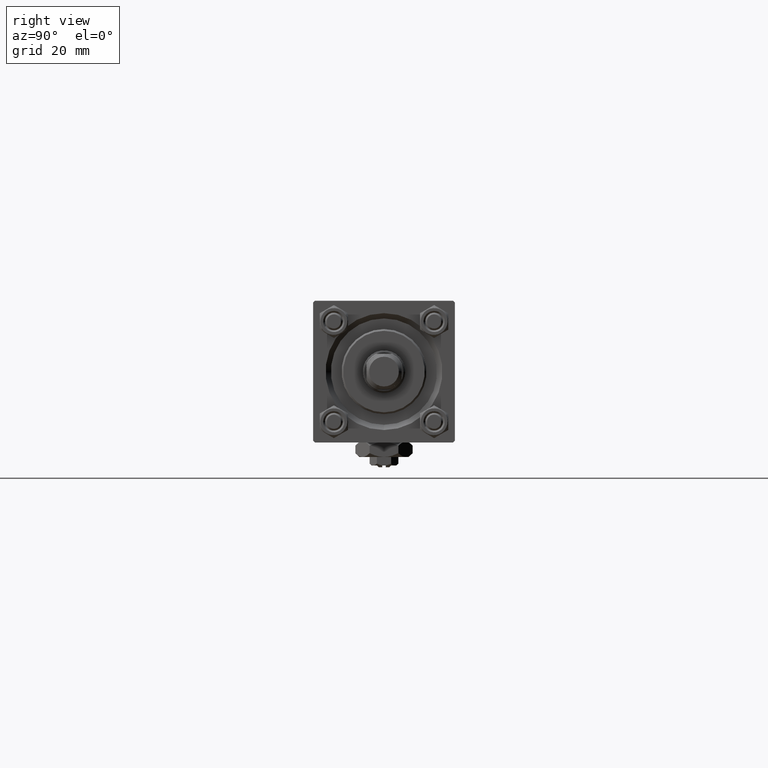
[diagram: clean part render]
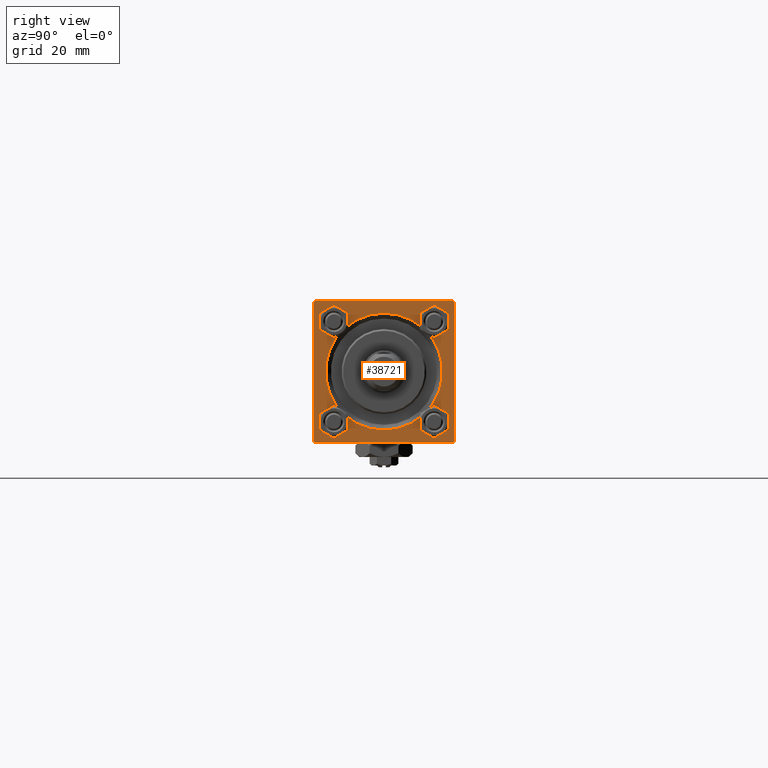
[diagram: same view with one face highlighted and labeled with its STEP entity id]
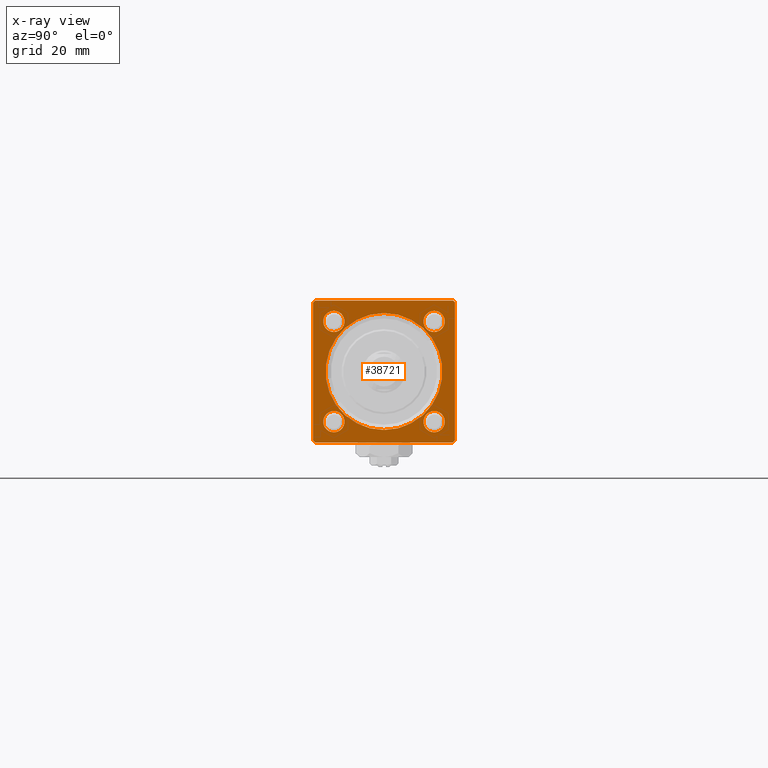
[diagram: x-ray of the same camera — body ghosted, the highlighted face saturated]
A machine part, right view. The second image highlights one B-rep face of the part: STEP entity #38721.
The next image is the same camera in x-ray: the body ghosted, the highlighted face saturated — about 0% of this face is hidden behind the body in this view.
In plain terms, the highlighted planar face has unit normal (-1, 0, 0).
Its self-contained STEP definition (entity closure, byte-faithful):
#252 = AXIS2_PLACEMENT_3D ( 'NONE', #34776, #19457, #7313 ) ;
#269 = CIRCLE ( 'NONE', #12896, 2.999999999999987121 ) ;
#563 = EDGE_CURVE ( 'NONE', #51259, #46880, #50434, .T. ) ;
#588 = DIRECTION ( 'NONE',  ( 0.000000000000000000, 0.000000000000000000, 1.000000000000000000 ) ) ;
#670 = CIRCLE ( 'NONE', #5717, 16.49999999999998579 ) ;
#824 = DIRECTION ( 'NONE',  ( 0.000000000000000000, 0.000000000000000000, 1.000000000000000000 ) ) ;
#833 = CARTESIAN_POINT ( 'NONE',  ( 149.0000000000000284, -20.00000000000000355, 19.50000000000002487 ) ) ;
#1634 = CIRCLE ( 'NONE', #16798, 2.999999999999990674 ) ;
#1830 = EDGE_CURVE ( 'NONE', #32426, #17925, #36829, .T. ) ;
#1846 = VERTEX_POINT ( 'NONE', #48218 ) ;
#1894 = VECTOR ( 'NONE', #35304, 1000.000000000000000 ) ;
#2002 = VERTEX_POINT ( 'NONE', #49512 ) ;
#2671 = CARTESIAN_POINT ( 'NONE',  ( 149.0000000000000284, 14.15000000000000036, -17.14999999999999147 ) ) ;
#2981 = DIRECTION ( 'NONE',  ( 0.000000000000000000, 0.000000000000000000, -1.000000000000000000 ) ) ;
#3082 = LINE ( 'NONE', #27894, #1894 ) ;
#3255 = FACE_OUTER_BOUND ( 'NONE', #30911, .T. ) ;
#3495 = DIRECTION ( 'NONE',  ( -0.000000000000000000, -0.7071067811865474617, -0.7071067811865474617 ) ) ;
#3518 = FACE_BOUND ( 'NONE', #47140, .T. ) ;
#4102 = DIRECTION ( 'NONE',  ( 0.000000000000000000, -1.000000000000000000, -8.673617379884035472E-17 ) ) ;
#4895 = DIRECTION ( 'NONE',  ( 0.000000000000000000, 0.000000000000000000, 1.000000000000000000 ) ) ;
#4976 = VERTEX_POINT ( 'NONE', #28521 ) ;
#5416 = CARTESIAN_POINT ( 'NONE',  ( 149.0000000000000284, 19.50000000000003908, 20.00000000000000000 ) ) ;
#5583 = CARTESIAN_POINT ( 'NONE',  ( 149.0000000000000284, 14.15000000000000036, -14.15000000000000036 ) ) ;
#5717 = AXIS2_PLACEMENT_3D ( 'NONE', #20740, #16777, #4895 ) ;
#5826 = AXIS2_PLACEMENT_3D ( 'NONE', #50936, #10237, #30833 ) ;
#5869 = ORIENTED_EDGE ( 'NONE', *, *, #51654, .T. ) ;
#6211 = AXIS2_PLACEMENT_3D ( 'NONE', #49596, #17091, #8141 ) ;
#6224 = ORIENTED_EDGE ( 'NONE', *, *, #36988, .T. ) ;
#6943 = CARTESIAN_POINT ( 'NONE',  ( 149.0000000000000284, 19.99999999999999645, 20.00000000000000000 ) ) ;
#7270 = ORIENTED_EDGE ( 'NONE', *, *, #9263, .T. ) ;
#7313 = DIRECTION ( 'NONE',  ( 0.000000000000000000, 0.000000000000000000, 1.000000000000000000 ) ) ;
#7725 = DIRECTION ( 'NONE',  ( -1.000000000000000000, -0.000000000000000000, -0.000000000000000000 ) ) ;
#8128 = CARTESIAN_POINT ( 'NONE',  ( 149.0000000000000284, -14.15000000000000036, 14.15000000000000036 ) ) ;
#8141 = DIRECTION ( 'NONE',  ( 0.000000000000000000, 0.000000000000000000, 1.000000000000000000 ) ) ;
#8215 = VECTOR ( 'NONE', #8501, 1000.000000000000114 ) ;
#8294 = ORIENTED_EDGE ( 'NONE', *, *, #34994, .T. ) ;
#8390 = DIRECTION ( 'NONE',  ( -1.000000000000000000, -0.000000000000000000, -0.000000000000000000 ) ) ;
#8501 = DIRECTION ( 'NONE',  ( 0.000000000000000000, 0.7071067811865474617, -0.7071067811865474617 ) ) ;
#8696 = VERTEX_POINT ( 'NONE', #27405 ) ;
#9141 = DIRECTION ( 'NONE',  ( 0.000000000000000000, 0.000000000000000000, 1.000000000000000000 ) ) ;
#9263 = EDGE_CURVE ( 'NONE', #1846, #11119, #16033, .T. ) ;
#10106 = ORIENTED_EDGE ( 'NONE', *, *, #24647, .F. ) ;
#10237 = DIRECTION ( 'NONE',  ( -1.000000000000000000, -0.000000000000000000, -0.000000000000000000 ) ) ;
#10377 = CIRCLE ( 'NONE', #252, 2.999999999999990674 ) ;
#10903 = LINE ( 'NONE', #6943, #11355 ) ;
#11119 = VERTEX_POINT ( 'NONE', #52233 ) ;
#11181 = FACE_BOUND ( 'NONE', #49583, .T. ) ;
#11355 = VECTOR ( 'NONE', #2981, 1000.000000000000000 ) ;
#11996 = ORIENTED_EDGE ( 'NONE', *, *, #16266, .T. ) ;
#12184 = ORIENTED_EDGE ( 'NONE', *, *, #51824, .T. ) ;
#12719 = CARTESIAN_POINT ( 'NONE',  ( 149.0000000000000284, -19.50000000000002487, -20.00000000000000000 ) ) ;
#12797 = CARTESIAN_POINT ( 'NONE',  ( 149.0000000000000284, 19.99999999999999645, 20.00000000000000000 ) ) ;
#12896 = AXIS2_PLACEMENT_3D ( 'NONE', #16543, #28702, #9141 ) ;
#12966 = DIRECTION ( 'NONE',  ( -1.000000000000000000, -0.000000000000000000, -0.000000000000000000 ) ) ;
#12976 = LINE ( 'NONE', #12719, #8215 ) ;
#12983 = DIRECTION ( 'NONE',  ( 0.000000000000000000, 0.000000000000000000, 1.000000000000000000 ) ) ;
#13184 = CARTESIAN_POINT ( 'NONE',  ( 149.0000000000000284, 19.99999999999999645, 19.50000000000004263 ) ) ;
#13324 = DIRECTION ( 'NONE',  ( 0.000000000000000000, 8.673617379884036705E-17, -1.000000000000000000 ) ) ;
#13775 = VECTOR ( 'NONE', #3495, 1000.000000000000114 ) ;
#14098 = CARTESIAN_POINT ( 'NONE',  ( 149.0000000000000284, -20.00000000000000355, 19.99999999999999645 ) ) ;
#14124 = EDGE_LOOP ( 'NONE', ( #11996, #7270 ) ) ;
#14908 = CARTESIAN_POINT ( 'NONE',  ( 149.0000000000000284, 19.99999999999999645, -19.50000000000001421 ) ) ;
#15619 = CARTESIAN_POINT ( 'NONE',  ( 149.0000000000000284, -14.15000000000000036, 17.14999999999999147 ) ) ;
#15908 = ORIENTED_EDGE ( 'NONE', *, *, #28527, .T. ) ;
#16033 = CIRCLE ( 'NONE', #21898, 2.999999999999987121 ) ;
#16266 = EDGE_CURVE ( 'NONE', #11119, #1846, #269, .T. ) ;
#16543 = CARTESIAN_POINT ( 'NONE',  ( 149.0000000000000284, 14.15000000000000036, 14.15000000000000036 ) ) ;
#16777 = DIRECTION ( 'NONE',  ( -1.000000000000000000, -0.000000000000000000, -0.000000000000000000 ) ) ;
#16798 = AXIS2_PLACEMENT_3D ( 'NONE', #41759, #20651, #12983 ) ;
#17091 = DIRECTION ( 'NONE',  ( -1.000000000000000000, -0.000000000000000000, -0.000000000000000000 ) ) ;
#17720 = DIRECTION ( 'NONE',  ( -1.000000000000000000, -0.000000000000000000, -0.000000000000000000 ) ) ;
#17806 = LINE ( 'NONE', #5416, #42886 ) ;
#17925 = VERTEX_POINT ( 'NONE', #43742 ) ;
#17949 = VECTOR ( 'NONE', #13324, 1000.000000000000000 ) ;
#18063 = LINE ( 'NONE', #14098, #17949 ) ;
#18555 = FACE_BOUND ( 'NONE', #14124, .T. ) ;
#19072 = CARTESIAN_POINT ( 'NONE',  ( 149.0000000000000284, -20.00000000000000355, 19.50000000000002487 ) ) ;
#19300 = EDGE_CURVE ( 'NONE', #33482, #42319, #28163, .T. ) ;
#19457 = DIRECTION ( 'NONE',  ( -1.000000000000000000, -0.000000000000000000, -0.000000000000000000 ) ) ;
#19545 = ORIENTED_EDGE ( 'NONE', *, *, #20887, .T. ) ;
#19623 = PLANE ( 'NONE',  #29434 ) ;
#20651 = DIRECTION ( 'NONE',  ( -1.000000000000000000, -0.000000000000000000, -0.000000000000000000 ) ) ;
#20740 = CARTESIAN_POINT ( 'NONE',  ( 149.0000000000000284, 0.000000000000000000, 0.000000000000000000 ) ) ;
#20887 = EDGE_CURVE ( 'NONE', #17925, #33754, #43388, .T. ) ;
#21221 = ORIENTED_EDGE ( 'NONE', *, *, #563, .T. ) ;
#21898 = AXIS2_PLACEMENT_3D ( 'NONE', #37003, #12966, #824 ) ;
#22758 = ORIENTED_EDGE ( 'NONE', *, *, #30721, .T. ) ;
#22777 = ORIENTED_EDGE ( 'NONE', *, *, #42133, .T. ) ;
#23569 = CARTESIAN_POINT ( 'NONE',  ( 149.0000000000000284, -14.15000000000000036, -14.15000000000000036 ) ) ;
#24647 = EDGE_CURVE ( 'NONE', #46209, #8696, #10903, .T. ) ;
#24663 = ORIENTED_EDGE ( 'NONE', *, *, #41061, .T. ) ;
#25444 = ORIENTED_EDGE ( 'NONE', *, *, #49949, .F. ) ;
#27292 = FACE_BOUND ( 'NONE', #51668, .T. ) ;
#27405 = CARTESIAN_POINT ( 'NONE',  ( 149.0000000000000284, 19.99999999999999645, -19.50000000000001421 ) ) ;
#27690 = VECTOR ( 'NONE', #4102, 1000.000000000000000 ) ;
#27894 = CARTESIAN_POINT ( 'NONE',  ( 149.0000000000000284, 19.99999999999999645, -20.00000000000000000 ) ) ;
#28163 = CIRCLE ( 'NONE', #6211, 2.999999999999990674 ) ;
#28347 = CIRCLE ( 'NONE', #31726, 2.999999999999990674 ) ;
#28521 = CARTESIAN_POINT ( 'NONE',  ( 149.0000000000000284, 19.50000000000001066, -20.00000000000000000 ) ) ;
#28527 = EDGE_CURVE ( 'NONE', #4976, #8696, #50597, .T. ) ;
#28702 = DIRECTION ( 'NONE',  ( -1.000000000000000000, -0.000000000000000000, -0.000000000000000000 ) ) ;
#28738 = CARTESIAN_POINT ( 'NONE',  ( 149.0000000000000284, -14.15000000000000036, 11.15000000000001279 ) ) ;
#28832 = VERTEX_POINT ( 'NONE', #37571 ) ;
#28996 = CARTESIAN_POINT ( 'NONE',  ( 149.0000000000000284, 2.020667218593131128E-15, 16.49999999999998579 ) ) ;
#29434 = AXIS2_PLACEMENT_3D ( 'NONE', #38895, #47096, #42603 ) ;
#30721 = EDGE_CURVE ( 'NONE', #30802, #28832, #28347, .T. ) ;
#30802 = VERTEX_POINT ( 'NONE', #2671 ) ;
#30833 = DIRECTION ( 'NONE',  ( 0.000000000000000000, 0.000000000000000000, 1.000000000000000000 ) ) ;
#30911 = EDGE_LOOP ( 'NONE', ( #12184, #45976, #25444, #15908, #10106, #24663, #40188, #19545 ) ) ;
#31102 = CARTESIAN_POINT ( 'NONE',  ( 149.0000000000000284, -14.15000000000000036, -17.14999999999999147 ) ) ;
#31494 = ORIENTED_EDGE ( 'NONE', *, *, #43243, .T. ) ;
#31726 = AXIS2_PLACEMENT_3D ( 'NONE', #5583, #17720, #588 ) ;
#32426 = VERTEX_POINT ( 'NONE', #39743 ) ;
#33482 = VERTEX_POINT ( 'NONE', #49052 ) ;
#33508 = VERTEX_POINT ( 'NONE', #50813 ) ;
#33754 = VERTEX_POINT ( 'NONE', #833 ) ;
#33775 = EDGE_CURVE ( 'NONE', #2002, #33508, #12976, .T. ) ;
#34776 = CARTESIAN_POINT ( 'NONE',  ( 149.0000000000000284, 14.15000000000000036, -14.15000000000000036 ) ) ;
#34994 = EDGE_CURVE ( 'NONE', #51409, #43356, #670, .T. ) ;
#35304 = DIRECTION ( 'NONE',  ( 0.000000000000000000, -1.000000000000000000, 0.000000000000000000 ) ) ;
#36224 = DIRECTION ( 'NONE',  ( 0.000000000000000000, 0.000000000000000000, 1.000000000000000000 ) ) ;
#36829 = LINE ( 'NONE', #12797, #27690 ) ;
#36988 = EDGE_CURVE ( 'NONE', #42319, #33482, #37786, .T. ) ;
#37003 = CARTESIAN_POINT ( 'NONE',  ( 149.0000000000000284, 14.15000000000000036, 14.15000000000000036 ) ) ;
#37571 = CARTESIAN_POINT ( 'NONE',  ( 149.0000000000000284, 14.15000000000000036, -11.15000000000001101 ) ) ;
#37786 = CIRCLE ( 'NONE', #44569, 2.999999999999990674 ) ;
#38721 = ADVANCED_FACE ( 'NONE', ( #11181, #27292, #18555, #3518, #39428, #3255 ), #19623, .F. ) ;
#38895 = CARTESIAN_POINT ( 'NONE',  ( 149.0000000000000284, 0.000000000000000000, 0.000000000000000000 ) ) ;
#39428 = FACE_BOUND ( 'NONE', #40780, .T. ) ;
#39743 = CARTESIAN_POINT ( 'NONE',  ( 149.0000000000000284, 19.50000000000003908, 20.00000000000000000 ) ) ;
#40188 = ORIENTED_EDGE ( 'NONE', *, *, #1830, .T. ) ;
#40279 = AXIS2_PLACEMENT_3D ( 'NONE', #8128, #8390, #48802 ) ;
#40411 = CIRCLE ( 'NONE', #5826, 16.49999999999998579 ) ;
#40780 = EDGE_LOOP ( 'NONE', ( #22777, #8294 ) ) ;
#41061 = EDGE_CURVE ( 'NONE', #46209, #32426, #17806, .T. ) ;
#41759 = CARTESIAN_POINT ( 'NONE',  ( 149.0000000000000284, -14.15000000000000036, 14.15000000000000036 ) ) ;
#41761 = VECTOR ( 'NONE', #46867, 1000.000000000000114 ) ;
#42133 = EDGE_CURVE ( 'NONE', #43356, #51409, #40411, .T. ) ;
#42279 = CARTESIAN_POINT ( 'NONE',  ( 149.0000000000000284, 0.000000000000000000, -16.49999999999998579 ) ) ;
#42319 = VERTEX_POINT ( 'NONE', #31102 ) ;
#42603 = DIRECTION ( 'NONE',  ( -0.000000000000000000, 0.000000000000000000, 1.000000000000000000 ) ) ;
#42886 = VECTOR ( 'NONE', #50066, 1000.000000000000114 ) ;
#43243 = EDGE_CURVE ( 'NONE', #46880, #51259, #1634, .T. ) ;
#43356 = VERTEX_POINT ( 'NONE', #42279 ) ;
#43388 = LINE ( 'NONE', #19072, #13775 ) ;
#43742 = CARTESIAN_POINT ( 'NONE',  ( 149.0000000000000284, -19.50000000000003197, 19.99999999999999645 ) ) ;
#44569 = AXIS2_PLACEMENT_3D ( 'NONE', #23569, #7725, #36224 ) ;
#45976 = ORIENTED_EDGE ( 'NONE', *, *, #33775, .T. ) ;
#46076 = ORIENTED_EDGE ( 'NONE', *, *, #19300, .T. ) ;
#46209 = VERTEX_POINT ( 'NONE', #13184 ) ;
#46867 = DIRECTION ( 'NONE',  ( -0.000000000000000000, 0.7071067811865474617, 0.7071067811865474617 ) ) ;
#46880 = VERTEX_POINT ( 'NONE', #15619 ) ;
#47096 = DIRECTION ( 'NONE',  ( -1.000000000000000000, 0.000000000000000000, -0.000000000000000000 ) ) ;
#47140 = EDGE_LOOP ( 'NONE', ( #21221, #31494 ) ) ;
#48218 = CARTESIAN_POINT ( 'NONE',  ( 149.0000000000000284, 14.15000000000000036, 17.14999999999999147 ) ) ;
#48802 = DIRECTION ( 'NONE',  ( 0.000000000000000000, 0.000000000000000000, 1.000000000000000000 ) ) ;
#49052 = CARTESIAN_POINT ( 'NONE',  ( 149.0000000000000284, -14.15000000000000036, -11.15000000000001101 ) ) ;
#49512 = CARTESIAN_POINT ( 'NONE',  ( 149.0000000000000284, -20.00000000000000000, -19.50000000000002487 ) ) ;
#49583 = EDGE_LOOP ( 'NONE', ( #6224, #46076 ) ) ;
#49596 = CARTESIAN_POINT ( 'NONE',  ( 149.0000000000000284, -14.15000000000000036, -14.15000000000000036 ) ) ;
#49949 = EDGE_CURVE ( 'NONE', #4976, #33508, #3082, .T. ) ;
#50066 = DIRECTION ( 'NONE',  ( 0.000000000000000000, -0.7071067811865474617, 0.7071067811865474617 ) ) ;
#50434 = CIRCLE ( 'NONE', #40279, 2.999999999999990674 ) ;
#50597 = LINE ( 'NONE', #14908, #41761 ) ;
#50813 = CARTESIAN_POINT ( 'NONE',  ( 149.0000000000000284, -19.50000000000002487, -20.00000000000000000 ) ) ;
#50936 = CARTESIAN_POINT ( 'NONE',  ( 149.0000000000000284, 0.000000000000000000, 0.000000000000000000 ) ) ;
#51259 = VERTEX_POINT ( 'NONE', #28738 ) ;
#51409 = VERTEX_POINT ( 'NONE', #28996 ) ;
#51654 = EDGE_CURVE ( 'NONE', #28832, #30802, #10377, .T. ) ;
#51668 = EDGE_LOOP ( 'NONE', ( #22758, #5869 ) ) ;
#51824 = EDGE_CURVE ( 'NONE', #33754, #2002, #18063, .T. ) ;
#52233 = CARTESIAN_POINT ( 'NONE',  ( 149.0000000000000284, 14.15000000000000036, 11.15000000000001279 ) ) ;